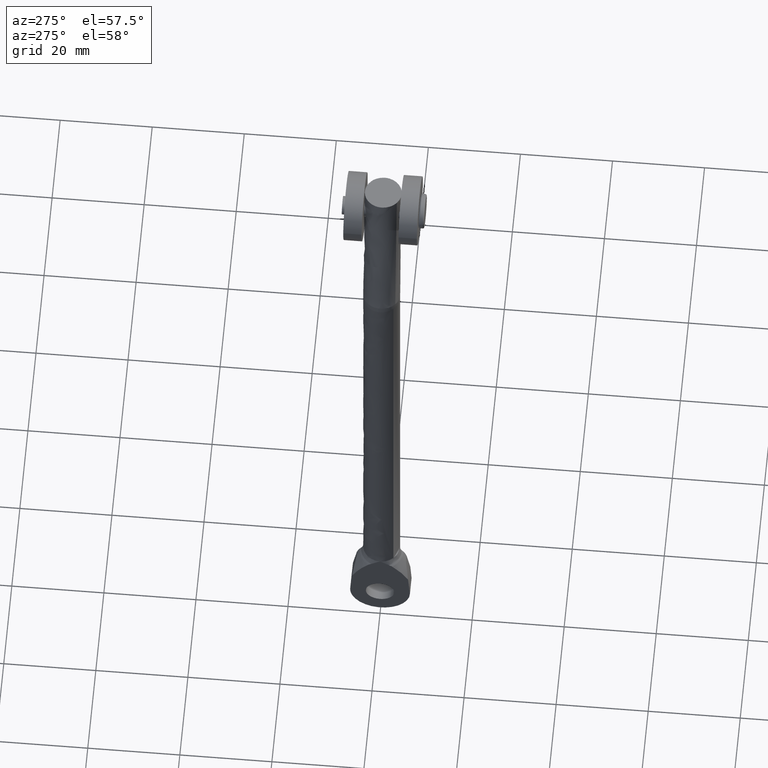
[diagram: clean part render]
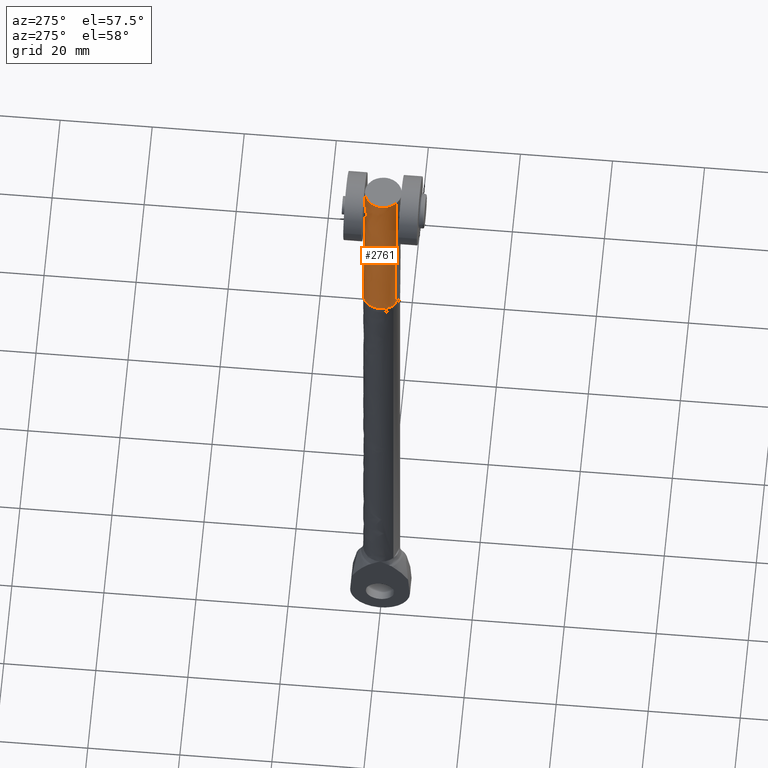
[diagram: same view with one face highlighted and labeled with its STEP entity id]
A machine part, auxiliary view. The second image highlights one B-rep face of the part: STEP entity #2761.
In plain terms, the highlighted face is a freeform B-spline surface patch.
Its self-contained STEP definition (entity closure, byte-faithful):
#1783=CARTESIAN_POINT('',(5.400500869180476,3.485755978283811,142.586981383168110));
#1784=VERTEX_POINT('',#1783);
#1790=CARTESIAN_POINT('',(7.610543300745107,4.000000189989804,144.665541656474400));
#1791=VERTEX_POINT('',#1790);
#1792=CARTESIAN_POINT('',(7.610543300745107,4.000000189989804,144.665541656474400));
#1793=CARTESIAN_POINT('',(7.469192474644559,4.000000189989811,144.672964673244590));
#1794=CARTESIAN_POINT('',(7.329938995884052,3.992545046967532,144.666098899735200));
#1795=CARTESIAN_POINT('',(7.123959998991496,3.971653967259806,144.635579344036500));
#1796=CARTESIAN_POINT('',(7.055787210666729,3.963066491220091,144.622008614275300));
#1797=CARTESIAN_POINT('',(6.954255708554560,3.947900529510064,144.596467443027790));
#1798=CARTESIAN_POINT('',(6.920544569320592,3.942463038842448,144.587083804785100));
#1799=CARTESIAN_POINT('',(6.854149107220857,3.930998209603654,144.566817767037610));
#1800=CARTESIAN_POINT('',(6.821362989877880,3.924956350069393,144.555911343398010));
#1801=CARTESIAN_POINT('',(6.659420227545016,3.893339410229713,144.497600262161090));
#1802=CARTESIAN_POINT('',(6.536168521495307,3.863550259688498,144.438986491116510));
#1803=CARTESIAN_POINT('',(6.360146805735378,3.814590108188941,144.333220682821800));
#1804=CARTESIAN_POINT('',(6.303038280428150,3.797565841382498,144.294963466260700));
#1805=CARTESIAN_POINT('',(6.193940729127311,3.763236706203642,144.213955721936290));
#1806=CARTESIAN_POINT('',(6.141649117165148,3.745849389744646,144.171033277415800));
#1807=CARTESIAN_POINT('',(6.041414474950617,3.711119884054744,144.080349513822200));
#1808=CARTESIAN_POINT('',(5.993471572634471,3.693776552348443,144.032588484877410));
#1809=CARTESIAN_POINT('',(5.901920724830227,3.659648124047698,143.932048646313690));
#1810=CARTESIAN_POINT('',(5.858094158643727,3.642775134729702,143.878957678960890));
#1811=CARTESIAN_POINT('',(5.735343013916148,3.594648323819973,143.714410416126810));
#1812=CARTESIAN_POINT('',(5.664879078936973,3.565839072263812,143.597831491618990));
#1813=CARTESIAN_POINT('',(5.576098698058533,3.530536202074326,143.412076226159710));
#1814=CARTESIAN_POINT('',(5.549348150232736,3.520089578767858,143.348329931027910));
#1815=CARTESIAN_POINT('',(5.513701694301489,3.506816018632717,143.249763028884300));
#1816=CARTESIAN_POINT('',(5.502543794074966,3.502783794372605,143.216320877794400));
#1817=CARTESIAN_POINT('',(5.482039862043259,3.495678680765711,143.149303652099800));
#1818=CARTESIAN_POINT('',(5.472658898062787,3.492592102867555,143.115645946290410));
#1819=CARTESIAN_POINT('',(5.430042177950237,3.479532585939859,142.946621449711390));
#1820=CARTESIAN_POINT('',(5.409543014411661,3.476707920514869,142.809066235903710));
#1821=CARTESIAN_POINT('',(5.401515466716143,3.482840424345580,142.641866654606790));
#1822=CARTESIAN_POINT('',(5.400740973456193,3.484150245208014,142.614440128424800));
#1823=CARTESIAN_POINT('',(5.400500869180476,3.485755978283811,142.586981383168110));
#1824=B_SPLINE_CURVE_WITH_KNOTS('',3,(#1792,#1793,#1794,#1795,#1796,#1797,#1798,#1799,#1800,#1801,#1802,#1803,#1804,#1805,#1806,#1807,#1808,#1809,#1810,#1811,#1812,#1813,#1814,#1815,#1816,#1817,#1818,#1819,#1820,#1821,#1822,#1823),.UNSPECIFIED.,.F.,.U.,(4,2,2,2,2,2,2,2,2,2,2,2,2,2,2,4),(0.0,0.031250000000008,0.046875000000011,0.054687500000013,0.062500000000015,0.093750000000024,0.109375000000027,0.125000000000030,0.140625000000032,0.156250000000035,0.187500000000041,0.203125000000043,0.210937500000042,0.218750000000041,0.250000000000041,0.256090386719410),.UNSPECIFIED.);
#1825=EDGE_CURVE('',#1791,#1784,#1824,.T.);
#1827=CARTESIAN_POINT('',(9.584145391527123,3.323064342099351,142.307539937895090));
#1828=VERTEX_POINT('',#1827);
#1829=CARTESIAN_POINT('',(9.584145391527123,3.323064342099351,142.307539937895090));
#1830=CARTESIAN_POINT('',(9.590750205968659,3.322646166243419,142.360278925609610));
#1831=CARTESIAN_POINT('',(9.601359098687752,3.324808586600281,142.482584310794490));
#1832=CARTESIAN_POINT('',(9.601256141659988,3.334112567356666,142.605493128414000));
#1833=CARTESIAN_POINT('',(9.595896573560202,3.345392050058977,142.710487338114210));
#1834=CARTESIAN_POINT('',(9.593215761675323,3.349727801037662,142.745648937246700));
#1835=CARTESIAN_POINT('',(9.586143710255266,3.359385900869781,142.815325802842300));
#1836=CARTESIAN_POINT('',(9.581757705684597,3.364707262619518,142.849872111230410));
#1837=CARTESIAN_POINT('',(9.555702838650179,3.393578762539092,143.021211640219800));
#1838=CARTESIAN_POINT('',(9.521804309178771,3.423892213255320,143.153867663206310));
#1839=CARTESIAN_POINT('',(9.451938002618707,3.476826610382813,143.347046835148890));
#1840=CARTESIAN_POINT('',(9.425623045470543,3.495580380080443,143.409930898948600));
#1841=CARTESIAN_POINT('',(9.367636186704930,3.534326722827698,143.531775888597910));
#1842=CARTESIAN_POINT('',(9.335894119646948,3.554373546114890,143.590931040824590));
#1843=CARTESIAN_POINT('',(9.266944836683134,3.595264830156719,143.705911780509690));
#1844=CARTESIAN_POINT('',(9.229737651318487,3.616110448457028,143.761736990949090));
#1845=CARTESIAN_POINT('',(9.149689947687843,3.658101790781166,143.870133134604090));
#1846=CARTESIAN_POINT('',(9.106915766187285,3.679195715119530,143.922553860742310));
#1847=CARTESIAN_POINT('',(8.972424431412165,3.741029805094179,144.072150088204410));
#1848=CARTESIAN_POINT('',(8.873893649234873,3.780710339093740,144.162753580007800));
#1849=CARTESIAN_POINT('',(8.738911386161481,3.826307657193783,144.264682562365100));
#1850=CARTESIAN_POINT('',(8.711318106757542,3.835226983762288,144.284495578828310));
#1851=CARTESIAN_POINT('',(8.654894439931091,3.852611381265384,144.322951265900710));
#1852=CARTESIAN_POINT('',(8.625975891565584,3.861100474579617,144.341646616581700));
#1853=CARTESIAN_POINT('',(8.537991064913822,3.885606838535729,144.395495343514910));
#1854=CARTESIAN_POINT('',(8.477860109587859,3.900630035105227,144.428346769560990));
#1855=CARTESIAN_POINT('',(8.293044393682729,3.941408089828674,144.517914136456910));
#1856=CARTESIAN_POINT('',(8.163981003647669,3.962891569463150,144.565743164904400));
#1857=CARTESIAN_POINT('',(7.960856450246504,3.984968522304131,144.618525650643390));
#1858=CARTESIAN_POINT('',(7.891302951096486,3.990627020767987,144.632939117162890));
#1859=CARTESIAN_POINT('',(7.751733122555824,3.998119699070418,144.654534237207710));
#1860=CARTESIAN_POINT('',(7.681218632821734,4.000000189989805,144.661830148797210));
#1861=CARTESIAN_POINT('',(7.610543300745107,4.000000189989805,144.665541656474400));
#1862=B_SPLINE_CURVE_WITH_KNOTS('',3,(#1829,#1830,#1831,#1832,#1833,#1834,#1835,#1836,#1837,#1838,#1839,#1840,#1841,#1842,#1843,#1844,#1845,#1846,#1847,#1848,#1849,#1850,#1851,#1852,#1853,#1854,#1855,#1856,#1857,#1858,#1859,#1860,#1861),.UNSPECIFIED.,.F.,.U.,(4,1,2,2,2,2,2,2,2,2,2,2,2,2,2,2,4),(0.738109564216509,0.749999999999990,0.765624999999991,0.773437499999992,0.781249999999992,0.812499999999988,0.828124999999988,0.843749999999989,0.859374999999990,0.874999999999990,0.906249999999991,0.914062499999992,0.921874999999992,0.937499999999993,0.968749999999997,0.984374999999998,1.0),.UNSPECIFIED.);
#1863=EDGE_CURVE('',#1828,#1791,#1862,.T.);
#1926=CARTESIAN_POINT('',(7.412735806164888,3.990487915824498,140.470262523689400));
#1927=VERTEX_POINT('',#1926);
#1928=CARTESIAN_POINT('',(7.412735806164928,3.990487915824495,140.470262523689400));
#1929=CARTESIAN_POINT('',(7.447604078518606,3.988082938646024,140.468805453517690));
#1930=CARTESIAN_POINT('',(7.482561045584613,3.985221015027698,140.468214813965890));
#1931=CARTESIAN_POINT('',(7.552654873758442,3.978578834050005,140.468788740961600));
#1932=CARTESIAN_POINT('',(7.587903162293150,3.974784141876265,140.469961793135410));
#1933=CARTESIAN_POINT('',(7.692896441432971,3.962142817054990,140.476096202239090));
#1934=CARTESIAN_POINT('',(7.761926909106228,3.952052042539227,140.483636638706290));
#1935=CARTESIAN_POINT('',(7.898176900685824,3.928852134409662,140.505292332703900));
#1936=CARTESIAN_POINT('',(7.965396098748334,3.915742211284754,140.519408535157000));
#1937=CARTESIAN_POINT('',(8.098093082605539,3.886773762240282,140.554111984893500));
#1938=CARTESIAN_POINT('',(8.163836336960179,3.870842705689779,140.574800890557700));
#1939=CARTESIAN_POINT('',(8.356600481716399,3.819820295164012,140.646007781140810));
#1940=CARTESIAN_POINT('',(8.477789326997653,3.781948297086218,140.704897431819010));
#1941=CARTESIAN_POINT('',(8.649788454953141,3.721834773696473,140.809612667112500));
#1942=CARTESIAN_POINT('',(8.705488667312473,3.701238803525876,140.847281747299210));
#1943=CARTESIAN_POINT('',(8.813593846827409,3.659385761040188,140.928272956578210));
#1944=CARTESIAN_POINT('',(8.865245510126533,3.638423266814199,140.971028192572110));
#1945=CARTESIAN_POINT('',(9.013396788962378,3.576144896717636,141.105990646955090));
#1946=CARTESIAN_POINT('',(9.103170670222918,3.535402440711257,141.204806012185290));
#1947=CARTESIAN_POINT('',(9.224465311791040,3.478685704656710,141.367505804342100));
#1948=CARTESIAN_POINT('',(9.262816335144031,3.460440148828096,141.424497752131400));
#1949=CARTESIAN_POINT('',(9.333294784359618,3.426818459216632,141.541204951347110));
#1950=CARTESIAN_POINT('',(9.365596533281291,3.411363363403959,141.601097152639910));
#1951=CARTESIAN_POINT('',(9.453768297935373,3.369822203411443,141.785504135180990));
#1952=CARTESIAN_POINT('',(9.501018759991707,3.348536905747246,141.914695364547300));
#1953=CARTESIAN_POINT('',(9.544344419753198,3.332746104029635,142.085125624330090));
#1954=CARTESIAN_POINT('',(9.552214966305836,3.330133101354656,142.119710245202610));
#1955=CARTESIAN_POINT('',(9.566099692046763,3.326113900850266,142.188720334140610));
#1956=CARTESIAN_POINT('',(9.572150208533124,3.324693518424784,142.223275758552690));
#1957=CARTESIAN_POINT('',(9.579797929437959,3.323460458350882,142.274422394835510));
#1958=CARTESIAN_POINT('',(9.582071501622147,3.323195683340510,142.290975534987210));
#1959=CARTESIAN_POINT('',(9.584145391527123,3.323064342099351,142.307539937895090));
#1960=B_SPLINE_CURVE_WITH_KNOTS('',3,(#1928,#1929,#1930,#1931,#1932,#1933,#1934,#1935,#1936,#1937,#1938,#1939,#1940,#1941,#1942,#1943,#1944,#1945,#1946,#1947,#1948,#1949,#1950,#1951,#1952,#1953,#1954,#1955,#1956,#1957,#1958,#1959),.UNSPECIFIED.,.F.,.U.,(4,2,2,2,2,2,2,2,2,2,2,2,2,2,2,4),(0.500000000000003,0.507812500000002,0.515625000000001,0.531249999999998,0.546874999999996,0.562499999999994,0.593749999999992,0.609374999999990,0.624999999999989,0.656249999999986,0.671874999999986,0.687499999999987,0.718749999999989,0.726562499999989,0.734374999999989,0.738109564216508),.UNSPECIFIED.);
#1961=EDGE_CURVE('',#1927,#1828,#1960,.T.);
#1963=CARTESIAN_POINT('',(5.400500869180476,3.485755978283811,142.586981383168110));
#1964=CARTESIAN_POINT('',(5.400125083754668,3.488269783172573,142.543994207689310));
#1965=CARTESIAN_POINT('',(5.401059004820073,3.491508823999394,142.500928068145610));
#1966=CARTESIAN_POINT('',(5.406974881684906,3.501831226125169,142.388326549629310));
#1967=CARTESIAN_POINT('',(5.421233684747584,3.518234213883251,142.250055602657910));
#1968=CARTESIAN_POINT('',(5.448835316936232,3.540911854753041,142.114759484276500));
#1969=CARTESIAN_POINT('',(5.483093344221564,3.566288634625427,141.980886102024610));
#1970=CARTESIAN_POINT('',(5.503671440195575,3.580396312270921,141.914401703773190));
#1971=CARTESIAN_POINT('',(5.574182913901590,3.625188982534615,141.720774634737100));
#1972=CARTESIAN_POINT('',(5.632949003935753,3.658479468520258,141.598325898240290));
#1973=CARTESIAN_POINT('',(5.738556630062112,3.710325067490161,141.423660767415900));
#1974=CARTESIAN_POINT('',(5.776907314787768,3.728017517493551,141.366692646693510));
#1975=CARTESIAN_POINT('',(5.858408128678578,3.762980222376601,141.257528389521100));
#1976=CARTESIAN_POINT('',(5.901568103279486,3.780269627370894,141.205242164010710));
#1977=CARTESIAN_POINT('',(6.038255447139157,3.830856687653766,141.055013326790000));
#1978=CARTESIAN_POINT('',(6.138903121743137,3.862887480524311,140.963620019948110));
#1979=CARTESIAN_POINT('',(6.305561902569514,3.905598282869871,140.840104310157390));
#1980=CARTESIAN_POINT('',(6.363218744369394,3.918790792613880,140.801645882883410));
#1981=CARTESIAN_POINT('',(6.481380604924491,3.942449709376296,140.730956466181600));
#1982=CARTESIAN_POINT('',(6.542088989735634,3.952969878751191,140.698573012965800));
#1983=CARTESIAN_POINT('',(6.666810030970332,3.971087538073546,140.639737313390810));
#1984=CARTESIAN_POINT('',(6.730822339905172,3.978685872760137,140.613284608167790));
#1985=CARTESIAN_POINT('',(6.829429744580155,3.987639862387870,140.578205616341310));
#1986=CARTESIAN_POINT('',(6.862731168326890,3.990216941102884,140.567280845055900));
#1987=CARTESIAN_POINT('',(6.930227769285729,3.994508512939211,140.547013494708810));
#1988=CARTESIAN_POINT('',(6.964411254418731,3.996217948315470,140.537682938155310));
#1989=CARTESIAN_POINT('',(7.135193681786557,4.002435274969997,140.495652643954710));
#1990=CARTESIAN_POINT('',(7.273262547367437,4.000107824538397,140.476090805857210));
#1991=CARTESIAN_POINT('',(7.412735806164888,3.990487915824498,140.470262523689400));
#1992=B_SPLINE_CURVE_WITH_KNOTS('',3,(#1963,#1964,#1965,#1966,#1967,#1968,#1969,#1970,#1971,#1972,#1973,#1974,#1975,#1976,#1977,#1978,#1979,#1980,#1981,#1982,#1983,#1984,#1985,#1986,#1987,#1988,#1989,#1990,#1991),.UNSPECIFIED.,.F.,.U.,(4,2,1,2,2,2,2,2,2,2,2,2,2,2,4),(0.256090386719410,0.265625000000038,0.281250000000035,0.296875000000032,0.312500000000029,0.343750000000023,0.359375000000020,0.375000000000017,0.406250000000011,0.421875000000010,0.437500000000009,0.453125000000008,0.460937500000008,0.468750000000007,0.500000000000003),.UNSPECIFIED.);
#1993=EDGE_CURVE('',#1784,#1927,#1992,.T.);
#2548=CARTESIAN_POINT('',(5.538012392364291,-3.157644222997639,148.184401512317210));
#2549=VERTEX_POINT('',#2548);
#2567=CARTESIAN_POINT('',(1.610989535584489,-3.157642361702258,113.519504617095190));
#2568=VERTEX_POINT('',#2567);
#2569=CARTESIAN_POINT('',(1.610989535584489,-3.157642361702258,113.519504617095190));
#2570=CARTESIAN_POINT('',(5.538012392364291,-3.157644222997639,148.184401512317210));
#2571=QUASI_UNIFORM_CURVE('',1,(#2569,#2570),.UNSPECIFIED.,.F.,.U.);
#2572=EDGE_CURVE('',#2568,#2549,#2571,.T.);
#2591=CARTESIAN_POINT('',(6.836663256583688,2.853002294104880,112.927513023445300));
#2592=VERTEX_POINT('',#2591);
#2606=CARTESIAN_POINT('',(10.795361536965080,2.853002214009421,147.872038192749390));
#2607=VERTEX_POINT('',#2606);
#2608=CARTESIAN_POINT('',(6.836663256583688,2.853002294104880,112.927513023445300));
#2609=CARTESIAN_POINT('',(10.795361536965080,2.853002214009421,147.872038192749390));
#2610=QUASI_UNIFORM_CURVE('',1,(#2608,#2609),.UNSPECIFIED.,.F.,.U.);
#2611=EDGE_CURVE('',#2592,#2607,#2610,.T.);
#2635=CARTESIAN_POINT('',(6.778958008078991,2.812016487531459,112.047614630911770));
#2636=CARTESIAN_POINT('',(6.758299994502779,2.832446909776940,112.049954878510650));
#2637=CARTESIAN_POINT('',(3.902647046131472,5.656638853816128,112.373458149103040));
#2638=CARTESIAN_POINT('',(1.116828956300964,2.803637057199411,112.689050162428600));
#2639=CARTESIAN_POINT('',(-1.668989133529544,-0.049364739417307,113.004642175754130));
#2640=CARTESIAN_POINT('',(1.165879950157450,-2.853001796616718,112.683493409831100));
#2641=CARTESIAN_POINT('',(1.330092092213958,-3.015404797644525,112.664890601301250));
#2642=CARTESIAN_POINT('',(1.536019083271561,-3.176563442170091,112.641562116952900));
#2643=CARTESIAN_POINT('',(1.560329713779113,-3.195588963011421,112.638808081843750));
#2644=CARTESIAN_POINT('',(10.945637154144052,2.812016487531459,148.828045216947430));
#2645=CARTESIAN_POINT('',(10.924979140567846,2.832446909776940,148.830385464546280));
#2646=CARTESIAN_POINT('',(8.069326192196535,5.656638853816128,149.153888735138710));
#2647=CARTESIAN_POINT('',(5.283508102366028,2.803637057199411,149.469480748464210));
#2648=CARTESIAN_POINT('',(2.497690012535520,-0.049364739417307,149.785072761789790));
#2649=CARTESIAN_POINT('',(5.332559096222513,-2.853001796616718,149.463923995866790));
#2650=CARTESIAN_POINT('',(5.496771238279021,-3.015404797644525,149.445321187336960));
#2651=CARTESIAN_POINT('',(5.702698229336626,-3.176563442170091,149.421992702988580));
#2652=CARTESIAN_POINT('',(5.727008859844177,-3.195588963011421,149.419238667879430));
#2660=(BOUNDED_SURFACE()B_SPLINE_SURFACE(2,1,((#2635,#2644),(#2636,#2645),(#2637,#2646),(#2638,#2647),(#2639,#2648),(#2640,#2649),(#2641,#2650),(#2642,#2651),(#2643,#2652)),.UNSPECIFIED.,.F.,.F.,.U.)B_SPLINE_SURFACE_WITH_KNOTS((3,1,2,2,1,3),(2,2),(0.0,0.068924475539157,6.696341473508677,13.323758471478200,13.853951831315760,13.922885297136620),(0.0,37.015689770696490),.UNSPECIFIED.)GEOMETRIC_REPRESENTATION_ITEM()RATIONAL_B_SPLINE_SURFACE(((1.006092120505433,1.006092120505433),(1.003046060252717,1.003046060252717),(0.707106781186548,0.707106781186548),(1.0,1.0),(0.707106781186548,0.707106781186548),(1.0,1.0),(0.976568542494924,0.976568542494924),(0.954327093831197,0.954327093831197),(0.951768069471734,0.951768069471734)))REPRESENTATION_ITEM('')SURFACE());
#2661=CARTESIAN_POINT('',(3.993984650593798,4.898425E-016,148.276132768289810));
#2662=VERTEX_POINT('',#2661);
#2663=CARTESIAN_POINT('',(3.993984650593798,4.898425E-016,148.276132768289810));
#2664=CARTESIAN_POINT('',(3.993984805096327,-1.956572817894078,148.276134708342990));
#2665=CARTESIAN_POINT('',(5.538012392364291,-3.157644222997640,148.184401512317090));
#2673=(BOUNDED_CURVE()B_SPLINE_CURVE(2,(#2663,#2664,#2665),.UNSPECIFIED.,.F.,.U.)B_SPLINE_CURVE_WITH_KNOTS((3,3),(0.500000000000000,0.643802461475620),.UNSPECIFIED.)CURVE()GEOMETRIC_REPRESENTATION_ITEM()RATIONAL_B_SPLINE_CURVE((1.0,0.831524936740433,0.856866903832758))REPRESENTATION_ITEM(''));
#2674=EDGE_CURVE('',#2662,#2549,#2673,.T.);
#2675=ORIENTED_EDGE('',*,*,#2674,.F.);
#2676=CARTESIAN_POINT('',(10.795361536965082,2.853002214009421,147.872038192749360));
#2677=CARTESIAN_POINT('',(9.628555396215532,3.999999875729662,147.941361960121550));
#2678=CARTESIAN_POINT('',(7.992656127229106,3.999999903553098,148.038556511936410));
#2679=CARTESIAN_POINT('',(3.993984559691276,3.999999971562652,148.276131708789990));
#2680=CARTESIAN_POINT('',(3.993984650593798,4.898425E-016,148.276132768289810));
#2688=(BOUNDED_CURVE()B_SPLINE_CURVE(2,(#2676,#2677,#2678,#2679,#2680),.UNSPECIFIED.,.F.,.U.)B_SPLINE_CURVE_WITH_KNOTS((3,2,3),(0.126316787372488,0.250000000000000,0.500000000000000),.UNSPECIFIED.)CURVE()GEOMETRIC_REPRESENTATION_ITEM()RATIONAL_B_SPLINE_CURVE((0.853569641986599,0.855096102961357,1.0,0.707106781186548,1.0))REPRESENTATION_ITEM(''));
#2689=EDGE_CURVE('',#2607,#2662,#2688,.T.);
#2690=ORIENTED_EDGE('',*,*,#2689,.F.);
#2691=ORIENTED_EDGE('',*,*,#2611,.F.);
#2692=CARTESIAN_POINT('',(4.173009202720932,3.998110121594023,113.229265657141800));
#2693=VERTEX_POINT('',#2692);
#2694=CARTESIAN_POINT('',(4.173009202720932,3.998110121594023,113.229265657141810));
#2695=CARTESIAN_POINT('',(5.727439899828772,3.950004450999066,113.053171634695190));
#2696=CARTESIAN_POINT('',(6.836663256583689,2.853002294104880,112.927513023445330));
#2704=(BOUNDED_CURVE()B_SPLINE_CURVE(2,(#2694,#2695,#2696),.UNSPECIFIED.,.F.,.U.)B_SPLINE_CURVE_WITH_KNOTS((3,3),(0.755400348447107,0.873683188859788),.UNSPECIFIED.)CURVE()GEOMETRIC_REPRESENTATION_ITEM()RATIONAL_B_SPLINE_CURVE((0.987619536277551,0.855029480129240,0.853569642573273))REPRESENTATION_ITEM(''));
#2705=EDGE_CURVE('',#2693,#2592,#2704,.T.);
#2706=ORIENTED_EDGE('',*,*,#2705,.F.);
#2707=CARTESIAN_POINT('',(0.091635584429234,0.351404786811785,113.691624962697110));
#2708=VERTEX_POINT('',#2707);
#2709=CARTESIAN_POINT('',(0.091635584429234,0.351404786811785,113.691624962697110));
#2710=CARTESIAN_POINT('',(0.411368049371533,4.000000000000001,113.655404000276230));
#2711=CARTESIAN_POINT('',(4.050845669879710,4.0,113.243104979783000));
#2712=CARTESIAN_POINT('',(4.111941869669362,4.000000000000000,113.236183683389500));
#2713=CARTESIAN_POINT('',(4.173009202720932,3.998110121594023,113.229265657141780));
#2721=(BOUNDED_CURVE()B_SPLINE_CURVE(2,(#2709,#2710,#2711,#2712,#2713),.UNSPECIFIED.,.F.,.U.)B_SPLINE_CURVE_WITH_KNOTS((3,2,3),(0.515281545196162,0.750000000000000,0.755400348447108),.UNSPECIFIED.)CURVE()GEOMETRIC_REPRESENTATION_ITEM()RATIONAL_B_SPLINE_CURVE((0.966381850602549,0.725010225030336,1.0,0.993673098242449,0.987619536277549))REPRESENTATION_ITEM(''));
#2722=EDGE_CURVE('',#2708,#2693,#2721,.T.);
#2723=ORIENTED_EDGE('',*,*,#2722,.F.);
#2724=CARTESIAN_POINT('',(0.076268314830339,0.0,113.693365847201800));
#2725=VERTEX_POINT('',#2724);
#2726=CARTESIAN_POINT('',(0.076268314830339,0.0,113.693365847201800));
#2727=CARTESIAN_POINT('',(0.076268314830339,0.176042718691640,113.693365847201870));
#2728=CARTESIAN_POINT('',(0.091635584429234,0.351404786811785,113.691624962697150));
#2736=(BOUNDED_CURVE()B_SPLINE_CURVE(2,(#2726,#2727,#2728),.UNSPECIFIED.,.F.,.U.)B_SPLINE_CURVE_WITH_KNOTS((3,3),(0.500000000000000,0.515281545196162),.UNSPECIFIED.)CURVE()GEOMETRIC_REPRESENTATION_ITEM()RATIONAL_B_SPLINE_CURVE((1.0,0.982096556156212,0.966381850602550))REPRESENTATION_ITEM(''));
#2737=EDGE_CURVE('',#2725,#2708,#2736,.T.);
#2738=ORIENTED_EDGE('',*,*,#2737,.F.);
#2739=CARTESIAN_POINT('',(1.610989535584490,-3.157642361702259,113.519504617095190));
#2740=CARTESIAN_POINT('',(0.076268314830339,-1.956570887673729,113.693365847201850));
#2741=CARTESIAN_POINT('',(0.076268314830339,0.0,113.693365847201800));
#2749=(BOUNDED_CURVE()B_SPLINE_CURVE(2,(#2739,#2740,#2741),.UNSPECIFIED.,.F.,.U.)B_SPLINE_CURVE_WITH_KNOTS((3,3),(0.356197659571987,0.500000000000000),.UNSPECIFIED.)CURVE()GEOMETRIC_REPRESENTATION_ITEM()RATIONAL_B_SPLINE_CURVE((0.856866861169029,0.831525078556526,1.0))REPRESENTATION_ITEM(''));
#2750=EDGE_CURVE('',#2568,#2725,#2749,.T.);
#2751=ORIENTED_EDGE('',*,*,#2750,.F.);
#2752=ORIENTED_EDGE('',*,*,#2572,.T.);
#2753=EDGE_LOOP('',(#2675,#2690,#2691,#2706,#2723,#2738,#2751,#2752));
#2754=FACE_OUTER_BOUND('',#2753,.T.);
#2755=ORIENTED_EDGE('',*,*,#1825,.T.);
#2756=ORIENTED_EDGE('',*,*,#1993,.T.);
#2757=ORIENTED_EDGE('',*,*,#1961,.T.);
#2758=ORIENTED_EDGE('',*,*,#1863,.T.);
#2759=EDGE_LOOP('',(#2755,#2756,#2757,#2758));
#2760=FACE_BOUND('',#2759,.T.);
#2761=ADVANCED_FACE('',(#2754,#2760),#2660,.T.);